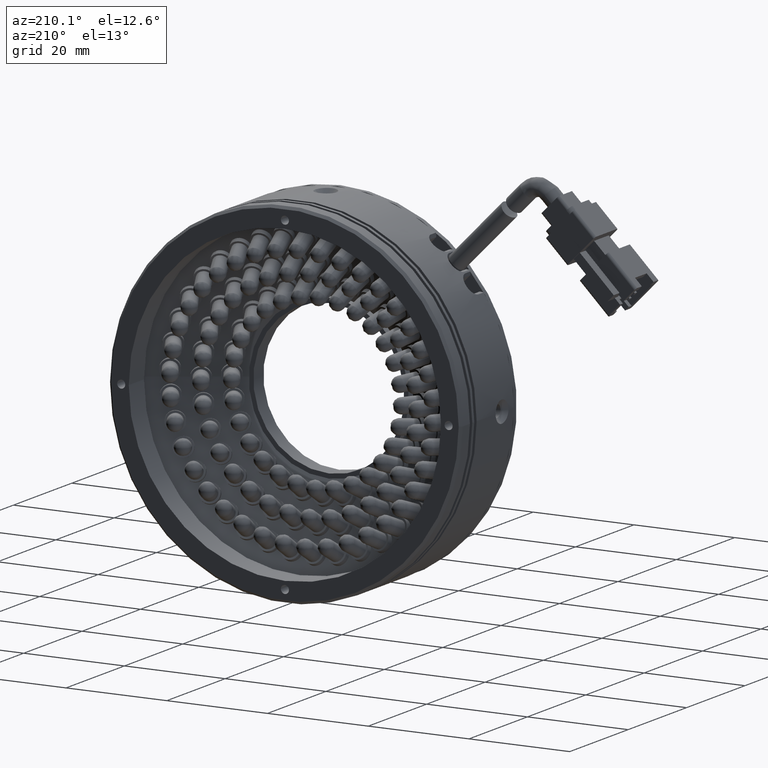
[diagram: clean part render]
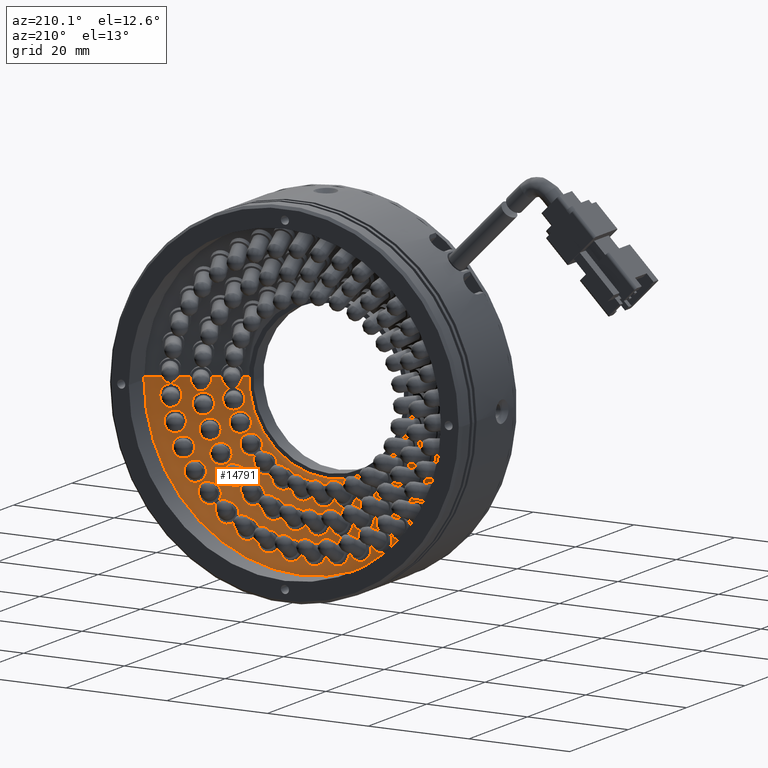
[diagram: same view with one face highlighted and labeled with its STEP entity id]
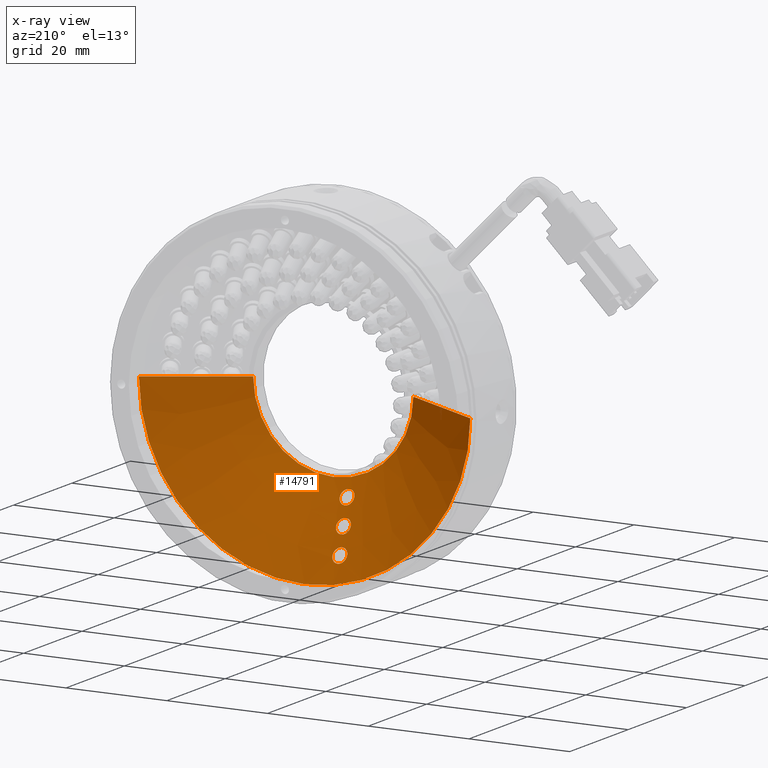
[diagram: x-ray of the same camera — body ghosted, the highlighted face saturated]
A machine part, auxiliary view. The second image highlights one B-rep face of the part: STEP entity #14791.
The next image is the same camera in x-ray: the body ghosted, the highlighted face saturated — about 0% of this face is hidden behind the body in this view.
In plain terms, the highlighted conical surface has half-angle 60 deg.
Its self-contained STEP definition (entity closure, byte-faithful):
#187 = CIRCLE ( 'NONE', #82472, 32.90000000000001300 ) ;
#855 = CARTESIAN_POINT ( 'NONE',  ( -7.739341272370260100, 39.67962014423471100, -24.47491582872099500 ) ) ;
#880 = CARTESIAN_POINT ( 'NONE',  ( -8.952979806178802800, 42.40546240595262600, -29.05316611971529600 ) ) ;
#979 = CARTESIAN_POINT ( 'NONE',  ( -7.790710251023201100, 35.69951058858720900, -17.42506773560813500 ) ) ;
#1148 = CARTESIAN_POINT ( 'NONE',  ( -6.707226876212286200, 38.65147343083933900, -22.83431947787757800 ) ) ;
#1178 = CARTESIAN_POINT ( 'NONE',  ( -7.506053600818340500, 41.36685048861907200, -27.47102932798317500 ) ) ;
#1279 = CARTESIAN_POINT ( 'NONE',  ( -8.650594942333347200, 36.81209799234509500, -19.19343151848955700 ) ) ;
#1514 = CARTESIAN_POINT ( 'NONE',  ( -9.616401842844490800, 39.04539446872104200, -22.93922199707782600 ) ) ;
#1817 = CARTESIAN_POINT ( 'NONE',  ( -8.126017153400308500, 39.73340617173973000, -24.49941220922536900 ) ) ;
#2421 = EDGE_CURVE ( 'NONE', #74066, #20190, #75999, .T. ) ;
#3980 = CARTESIAN_POINT ( 'NONE',  ( -6.647637831684664700, 36.96643683105271100, -19.89251276694124500 ) ) ;
#4283 = CARTESIAN_POINT ( 'NONE',  ( -6.013232809419451800, 35.88453945055366700, -18.09232449086070800 ) ) ;
#5323 = CARTESIAN_POINT ( 'NONE',  ( -9.614345477689243000, 41.06308327912607600, -26.54028890203502300 ) ) ;
#5634 = CARTESIAN_POINT ( 'NONE',  ( -10.24771977635316000, 42.15519138549281300, -28.33465124596552800 ) ) ;
#5635 = AXIS2_PLACEMENT_3D ( 'NONE', #45534, #32365, #25373 ) ;
#7442 = ORIENTED_EDGE ( 'NONE', *, *, #2421, .T. ) ;
#7801 = CARTESIAN_POINT ( 'NONE',  ( -3.499229287090496900, 44.33345823924977900, 0.0000000000000000000 ) ) ;
#7920 = CARTESIAN_POINT ( 'NONE',  ( -7.463401835400208700, 39.60817334590180400, -24.39573136900278500 ) ) ;
#7951 = CARTESIAN_POINT ( 'NONE',  ( -8.471406587644542800, 42.33036807508028000, -29.00761319249429700 ) ) ;
#8048 = CARTESIAN_POINT ( 'NONE',  ( -8.056575963960600700, 35.78741357684759100, -17.51473934416596700 ) ) ;
#8224 = CARTESIAN_POINT ( 'NONE',  ( -6.829042794482528900, 38.52533465631343300, -22.59609862422416500 ) ) ;
#8251 = CARTESIAN_POINT ( 'NONE',  ( -7.609221871326532500, 41.23701779164486000, -27.22840676551577100 ) ) ;
#8357 = CARTESIAN_POINT ( 'NONE',  ( -8.496494288496210200, 36.91697839393531700, -19.42180499483970400 ) ) ;
#8582 = CARTESIAN_POINT ( 'NONE',  ( -9.607191119719640700, 39.23581511972766800, -23.28281086070818900 ) ) ;
#8643 = ORIENTED_EDGE ( 'NONE', *, *, #87427, .T. ) ;
#10997 = CARTESIAN_POINT ( 'NONE',  ( -6.399150232738244300, 36.87332946304622500, -19.76723241423809800 ) ) ;
#11273 = CARTESIAN_POINT ( 'NONE',  ( -6.183427031668156100, 35.77688877810294300, -17.87939412666528200 ) ) ;
#12056 = FACE_BOUND ( 'NONE', #28759, .T. ) ;
#12304 = CARTESIAN_POINT ( 'NONE',  ( -9.861989164077567000, 41.16375678596976700, -26.66127428468372400 ) ) ;
#12619 = CARTESIAN_POINT ( 'NONE',  ( -10.07841646029127400, 42.25506040690066100, -28.55201313611082600 ) ) ;
#12681 = VERTEX_POINT ( 'NONE', #60663 ) ;
#13908 = AXIS2_PLACEMENT_3D ( 'NONE', #24022, #72842, #30991 ) ;
#14273 = FACE_BOUND ( 'NONE', #18311, .T. ) ;
#14791 = ADVANCED_FACE ( 'NONE', ( #14273, #30625, #12056, #49177 ), #81960, .F. ) ;
#14796 = DIRECTION ( 'NONE',  ( 0.0000000000000000000, 0.0000000000000000000, -1.000000000000000000 ) ) ;
#14935 = CARTESIAN_POINT ( 'NONE',  ( -7.214971785731115100, 39.51455658855817200, -24.27074307485122900 ) ) ;
#14963 = CARTESIAN_POINT ( 'NONE',  ( -8.204532125449727400, 42.25113862160805000, -28.91304017168920000 ) ) ;
#15066 = CARTESIAN_POINT ( 'NONE',  ( -8.295003591845938800, 35.89821382996912300, -17.64985393177651900 ) ) ;
#15129 = EDGE_CURVE ( 'NONE', #17104, #53279, #71944, .T. ) ;
#15222 = CARTESIAN_POINT ( 'NONE',  ( -6.999152665954783400, 38.41830274955536600, -22.38280453185543100 ) ) ;
#15256 = CARTESIAN_POINT ( 'NONE',  ( -7.764333339663633800, 41.12322337388067700, -27.00505168492092200 ) ) ;
#15284 = CARTESIAN_POINT ( 'NONE',  ( -8.512012952974407300, 38.31507978090635200, -21.90991986616349900 ) ) ;
#15357 = CARTESIAN_POINT ( 'NONE',  ( -8.226790161327347300, 37.02795848438182000, -19.68752652151526300 ) ) ;
#15597 = CARTESIAN_POINT ( 'NONE',  ( -9.541335136803008200, 39.36800356998072900, -23.53647611234611500 ) ) ;
#15654 = EDGE_CURVE ( 'NONE', #18611, #36733, #43786, .T. ) ;
#17050 = AXIS2_PLACEMENT_3D ( 'NONE', #38299, #87132, #45343 ) ;
#17104 = VERTEX_POINT ( 'NONE', #67724 ) ;
#17322 = EDGE_CURVE ( 'NONE', #87098, #74066, #84632, .T. ) ;
#17734 = CARTESIAN_POINT ( 'NONE',  ( -7.211639020026771300, 37.08328997647380000, -20.00095944428884900 ) ) ;
#17749 = ORIENTED_EDGE ( 'NONE', *, *, #87796, .T. ) ;
#18028 = CARTESIAN_POINT ( 'NONE',  ( -6.115102544428888900, 36.72155686723186100, -19.54186648512347800 ) ) ;
#18311 = EDGE_LOOP ( 'NONE', ( #29948, #61556 ) ) ;
#18322 = CARTESIAN_POINT ( 'NONE',  ( -6.557330366793737000, 35.64401429467526600, -17.58656346070924300 ) ) ;
#18611 = VERTEX_POINT ( 'NONE', #49106 ) ;
#19319 = CARTESIAN_POINT ( 'NONE',  ( -10.14492845220302200, 41.32551632175969300, -26.88098421239943300 ) ) ;
#19633 = CARTESIAN_POINT ( 'NONE',  ( -9.705804544648829700, 42.37663583179723000, -28.85127137951923600 ) ) ;
#20190 = VERTEX_POINT ( 'NONE', #66612 ) ;
#20477 = CARTESIAN_POINT ( 'NONE',  ( 29.40077071290951600, 44.33345823924977900, 4.029087969194793600E-015 ) ) ;
#21532 = CARTESIAN_POINT ( 'NONE',  ( 29.40077071290951600, 44.33345823924977900, 4.029087969194793600E-015 ) ) ;
#21741 = CARTESIAN_POINT ( 'NONE',  ( -7.310290041525680800, 35.61432121487328600, -17.38519587268690400 ) ) ;
#21907 = CARTESIAN_POINT ( 'NONE',  ( -6.931010848148186000, 39.36199844433254200, -24.04581909603001900 ) ) ;
#21934 = CARTESIAN_POINT ( 'NONE',  ( -7.965044978756109700, 42.14946159290583700, -28.77276077624242800 ) ) ;
#22039 = CARTESIAN_POINT ( 'NONE',  ( -8.611896817308270600, 36.11775762312419900, -17.95633560134464800 ) ) ;
#22043 = VECTOR ( 'NONE', #28552, 999.9999999999998900 ) ;
#22224 = CARTESIAN_POINT ( 'NONE',  ( -7.372949805764553900, 38.28617816751025800, -22.08953548399794500 ) ) ;
#22252 = CARTESIAN_POINT ( 'NONE',  ( -8.035341907883346100, 41.00062967706530500, -26.74589687646937700 ) ) ;
#22274 = CARTESIAN_POINT ( 'NONE',  ( -8.787145643246312000, 38.39363400891368600, -21.98507718232612300 ) ) ;
#22361 = CARTESIAN_POINT ( 'NONE',  ( -7.701477358955984600, 37.10535654532809200, -19.94355739374115500 ) ) ;
#22578 = CARTESIAN_POINT ( 'NONE',  ( -9.420373757316095700, 39.48659632667604300, -23.77897028652751700 ) ) ;
#22811 = EDGE_LOOP ( 'NONE', ( #51091, #7442, #8643, #44489, #45686, #28774 ) ) ;
#24022 = CARTESIAN_POINT ( 'NONE',  ( -3.499229287090496900, 44.33345823924977900, 0.0000000000000000000 ) ) ;
#24201 = VERTEX_POINT ( 'NONE', #62174 ) ;
#24806 = DIRECTION ( 'NONE',  ( 0.0000000000000000000, -1.000000000000000000, 0.0000000000000000000 ) ) ;
#25042 = CARTESIAN_POINT ( 'NONE',  ( -5.854298485863917100, 36.44466486082915000, -19.09157884545519900 ) ) ;
#25325 = CARTESIAN_POINT ( 'NONE',  ( -7.113232803650034500, 35.59585197292000200, -17.39564411082976700 ) ) ;
#25373 = DIRECTION ( 'NONE',  ( -1.000000000000000000, 0.0000000000000000000, 0.0000000000000000000 ) ) ;
#26340 = CARTESIAN_POINT ( 'NONE',  ( -10.40473452050690100, 41.61136502178461400, -27.32618704945820200 ) ) ;
#26517 = ORIENTED_EDGE ( 'NONE', *, *, #50008, .T. ) ;
#26650 = CARTESIAN_POINT ( 'NONE',  ( -9.150320248384384000, 42.42136921030059000, -29.04415472813653700 ) ) ;
#27408 = B_SPLINE_CURVE_WITH_KNOTS ( 'NONE', 3,
 ( #66584, #17734, #38738, #87559, #45778, #3980, #52814, #10997, #59885, #18028, #66889, #25042, #73853, #32008, #80890, #39052, #87850, #46059, #4283, #53114, #11273, #60166, #18322, #67181, #25325, #74151 ),
 .UNSPECIFIED., .F., .F.,
 ( 4, 2, 2, 2, 2, 2, 2, 2, 2, 2, 2, 2, 4 ),
 ( 0.004689153269395652200, 0.004982225177446755100, 0.005275297085497858800, 0.005568368993548961600, 0.005861440901600064500, 0.006447584717702279700, 0.007033728533804494900, 0.007326800441855596000, 0.007619872349906698900, 0.007912944257957800800, 0.008206016166008902800, 0.008792159982111105000, 0.009378303798213307200 ),
 .UNSPECIFIED. ) ;
#28003 = B_SPLINE_CURVE_WITH_KNOTS ( 'NONE', 3,
 ( #74881, #81906, #40049, #88889, #47090, #5323, #54141, #12304, #61194, #19319, #68199, #26340, #75183, #33348, #82201, #40361, #89199, #47391, #5634, #54442, #12619, #61493, #19633, #68502, #26650, #75478 ),
 .UNSPECIFIED., .F., .F.,
 ( 4, 2, 2, 2, 2, 2, 2, 2, 2, 2, 2, 2, 4 ),
 ( 0.0000000000000000000, 0.0002930574540876778300, 0.0005861149081753556600, 0.0008791723622630333800, 0.001172229816350711300, 0.001758344724526070400, 0.002344459632701429600, 0.002637517086789113500, 0.002930574540876797800, 0.003223631994964481700, 0.003516689449052165600, 0.004102804357227524300, 0.004688919265402883400 ),
 .UNSPECIFIED. ) ;
#28529 = CARTESIAN_POINT ( 'NONE',  ( -8.126017153400308500, 39.73340617173973000, -24.49941220922536900 ) ) ;
#28552 = DIRECTION ( 'NONE',  ( 0.8660254037844380400, 0.5000000000000012200, 1.060575238724906200E-016 ) ) ;
#28623 = CARTESIAN_POINT ( 'NONE',  ( -8.126017153400308500, 39.73340617173973000, -24.49941220922536900 ) ) ;
#28759 = EDGE_LOOP ( 'NONE', ( #17749, #41183 ) ) ;
#28774 = ORIENTED_EDGE ( 'NONE', *, *, #83506, .F. ) ;
#28928 = CARTESIAN_POINT ( 'NONE',  ( -6.670307195711726100, 39.08424491926190600, -23.59602734317266800 ) ) ;
#28955 = CARTESIAN_POINT ( 'NONE',  ( -7.646654690655180000, 41.94293296368107300, -28.45891335374651400 ) ) ;
#29057 = CARTESIAN_POINT ( 'NONE',  ( -8.799773251315674100, 36.41143492531891500, -18.43168847915595500 ) ) ;
#29227 = CARTESIAN_POINT ( 'NONE',  ( -7.928882857928427600, 38.23753208594516900, -21.89887809932152200 ) ) ;
#29256 = CARTESIAN_POINT ( 'NONE',  ( -8.561871147938912700, 40.91242967505317600, -26.49595380221827100 ) ) ;
#29276 = CARTESIAN_POINT ( 'NONE',  ( -9.034668528020464600, 38.49526318966495400, -22.10552491401226800 ) ) ;
#29355 = CARTESIAN_POINT ( 'NONE',  ( -7.310302041327206600, 37.09136403950636000, -19.99639186465795100 ) ) ;
#29579 = CARTESIAN_POINT ( 'NONE',  ( -9.251174328893736000, 39.58557349665799300, -23.99682824234886200 ) ) ;
#29948 = ORIENTED_EDGE ( 'NONE', *, *, #54884, .T. ) ;
#30625 = FACE_BOUND ( 'NONE', #76482, .T. ) ;
#30991 = DIRECTION ( 'NONE',  ( 0.0000000000000000000, 0.0000000000000000000, -1.000000000000000000 ) ) ;
#32008 = CARTESIAN_POINT ( 'NONE',  ( -5.814987342146343600, 36.19855876566911200, -18.66684883409576700 ) ) ;
#32365 = DIRECTION ( 'NONE',  ( 2.636357866226149200E-017, 1.000000000000000000, 0.0000000000000000000 ) ) ;
#33348 = CARTESIAN_POINT ( 'NONE',  ( -10.44430387557866000, 41.85539707224332100, -27.75205785832393300 ) ) ;
#35695 = CARTESIAN_POINT ( 'NONE',  ( -8.126009834923969800, 38.25536549735331000, -21.88878091193274100 ) ) ;
#35935 = CARTESIAN_POINT ( 'NONE',  ( -6.630971927124229600, 38.83821190458821300, -23.17127738623090800 ) ) ;
#35960 = CARTESIAN_POINT ( 'NONE',  ( -7.458203511137344100, 41.65423866734553800, -27.98077773603358800 ) ) ;
#35989 = CARTESIAN_POINT ( 'NONE',  ( -8.224573364750602500, 38.26428220679626700, -21.88373231612141700 ) ) ;
#36060 = CARTESIAN_POINT ( 'NONE',  ( -8.790647955426298000, 36.60104901771633500, -18.77574319153972800 ) ) ;
#36265 = CARTESIAN_POINT ( 'NONE',  ( -8.952974904975276300, 40.92677479993722800, -26.44290119707320100 ) ) ;
#36282 = CARTESIAN_POINT ( 'NONE',  ( -9.317464193012229500, 38.65814931289669000, -22.32459778235125100 ) ) ;
#36589 = CARTESIAN_POINT ( 'NONE',  ( -8.878725112800903900, 39.70573038120297600, -24.29688026088736300 ) ) ;
#36733 = VERTEX_POINT ( 'NONE', #20477 ) ;
#38299 = CARTESIAN_POINT ( 'NONE',  ( -3.499229287090496900, 34.51850366302609500, 0.0000000000000000000 ) ) ;
#38738 = CARTESIAN_POINT ( 'NONE',  ( -7.114594245637907700, 37.07085854233844200, -19.99682047666746200 ) ) ;
#39052 = CARTESIAN_POINT ( 'NONE',  ( -5.863028698288033500, 36.05616924600039400, -18.41222383921838100 ) ) ;
#40049 = CARTESIAN_POINT ( 'NONE',  ( -9.148472975793387400, 40.94905908247741200, -26.44145130640389100 ) ) ;
#40361 = CARTESIAN_POINT ( 'NONE',  ( -10.39682983194053100, 41.99298110657280600, -28.00939857565776900 ) ) ;
#40565 = VERTEX_POINT ( 'NONE', #63207 ) ;
#40578 = EDGE_CURVE ( 'NONE', #40565, #59416, #84896, .T. ) ;
#41172 = LINE ( 'NONE', #53858, #88099 ) ;
#41183 = ORIENTED_EDGE ( 'NONE', *, *, #15129, .T. ) ;
#42676 = CARTESIAN_POINT ( 'NONE',  ( -7.930306645193956800, 39.71298856615720000, -24.49979927782977300 ) ) ;
#42812 = CARTESIAN_POINT ( 'NONE',  ( -7.696111051554895600, 35.67556865600905500, -17.40548577319333700 ) ) ;
#42983 = CARTESIAN_POINT ( 'NONE',  ( -6.678952271236222600, 38.69619366119012900, -22.91644508116251100 ) ) ;
#43009 = CARTESIAN_POINT ( 'NONE',  ( -7.467846295497078100, 41.45990364860053000, -27.63941037861222200 ) ) ;
#43117 = CARTESIAN_POINT ( 'NONE',  ( -8.724902758857581400, 36.73225378557625500, -19.02995811931226200 ) ) ;
#43351 = CARTESIAN_POINT ( 'NONE',  ( -9.577168760598130600, 38.94480603053467900, -22.76935304859107800 ) ) ;
#43650 = CARTESIAN_POINT ( 'NONE',  ( -8.323351579588042200, 39.74940849208941500, -24.49035177633747300 ) ) ;
#43786 = CIRCLE ( 'NONE', #13908, 32.90000000000001300 ) ;
#44489 = ORIENTED_EDGE ( 'NONE', *, *, #15654, .F. ) ;
#45343 = DIRECTION ( 'NONE',  ( 0.0000000000000000000, 0.0000000000000000000, -1.000000000000000000 ) ) ;
#45534 = CARTESIAN_POINT ( 'NONE',  ( -3.499229287090496900, 44.33345823924977900, 0.0000000000000000000 ) ) ;
#45686 = ORIENTED_EDGE ( 'NONE', *, *, #76356, .F. ) ;
#45778 = CARTESIAN_POINT ( 'NONE',  ( -6.828694194691125000, 37.01639190862390200, -19.95073675693838300 ) ) ;
#46059 = CARTESIAN_POINT ( 'NONE',  ( -5.966337066305794000, 35.92539275226341300, -18.17014078892612600 ) ) ;
#47090 = CARTESIAN_POINT ( 'NONE',  ( -9.433791460266444800, 41.00864045244903600, -26.48461712446967600 ) ) ;
#47391 = CARTESIAN_POINT ( 'NONE',  ( -10.29431679352946500, 42.11694194374440100, -28.25534752693431500 ) ) ;
#49106 = CARTESIAN_POINT ( 'NONE',  ( -3.499229287090496900, 44.33345823924977900, -32.90000000000001300 ) ) ;
#49177 = FACE_OUTER_BOUND ( 'NONE', #22811, .T. ) ;
#49690 = CARTESIAN_POINT ( 'NONE',  ( -7.644430114972484700, 39.65837043640359400, -24.45381316674345100 ) ) ;
#49724 = CARTESIAN_POINT ( 'NONE',  ( -8.566310128971036200, 42.35167900933220900, -29.02867869727654700 ) ) ;
#49831 = CARTESIAN_POINT ( 'NONE',  ( -7.971060916637100000, 35.75554223345177000, -17.47985001603979800 ) ) ;
#50006 = CARTESIAN_POINT ( 'NONE',  ( -6.782176119660943100, 38.56597510495269900, -22.67404312924625000 ) ) ;
#50008 = EDGE_CURVE ( 'NONE', #59416, #40565, #87140, .T. ) ;
#50028 = CARTESIAN_POINT ( 'NONE',  ( -7.534310879308643300, 41.32224913513599800, -27.38883581286950900 ) ) ;
#50140 = CARTESIAN_POINT ( 'NONE',  ( -8.604085098272355100, 36.84961811329559100, -19.27313423160762800 ) ) ;
#50360 = CARTESIAN_POINT ( 'NONE',  ( -9.616774726965559200, 39.18845754327679700, -23.19545030713630100 ) ) ;
#51091 = ORIENTED_EDGE ( 'NONE', *, *, #17322, .T. ) ;
#52238 = ORIENTED_EDGE ( 'NONE', *, *, #40578, .T. ) ;
#52814 = CARTESIAN_POINT ( 'NONE',  ( -6.561742631334450200, 36.93784400236128100, -19.85576617606574200 ) ) ;
#53114 = CARTESIAN_POINT ( 'NONE',  ( -6.121590895234669800, 35.81053907130727500, -17.94741377219531800 ) ) ;
#53279 = VERTEX_POINT ( 'NONE', #80282 ) ;
#53858 = CARTESIAN_POINT ( 'NONE',  ( -36.39922928709050600, 44.33345823924977900, 0.0000000000000000000 ) ) ;
#54141 = CARTESIAN_POINT ( 'NONE',  ( -9.699964876681329800, 41.09414735941405900, -26.57563184810865300 ) ) ;
#54442 = CARTESIAN_POINT ( 'NONE',  ( -10.13995489062094400, 42.22401240451118600, -28.48251311079387100 ) ) ;
#54884 = EDGE_CURVE ( 'NONE', #24201, #70088, #83528, .T. ) ;
#56576 = DIRECTION ( 'NONE',  ( 0.0000000000000000000, -1.000000000000000000, 0.0000000000000000000 ) ) ;
#56702 = CARTESIAN_POINT ( 'NONE',  ( -7.377524262307210800, 39.57942438519752000, -24.35907486611181800 ) ) ;
#56731 = CARTESIAN_POINT ( 'NONE',  ( -8.290397616310784200, 42.27999804800718000, -28.94963286773964800 ) ) ;
#56829 = CARTESIAN_POINT ( 'NONE',  ( -8.218397772938898200, 35.85858987407202400, -17.59949949590982900 ) ) ;
#57010 = CARTESIAN_POINT ( 'NONE',  ( -6.937344354033162300, 38.45174914575962100, -22.45094296160846500 ) ) ;
#57039 = CARTESIAN_POINT ( 'NONE',  ( -7.656069239680867600, 41.19652396437412300, -27.15037472642284700 ) ) ;
#57068 = CARTESIAN_POINT ( 'NONE',  ( -8.321456830152213200, 38.27810723177035600, -21.88707786487809800 ) ) ;
#57141 = CARTESIAN_POINT ( 'NONE',  ( -8.435043580221108800, 36.94728665405953200, -19.49171797322839700 ) ) ;
#57377 = CARTESIAN_POINT ( 'NONE',  ( -9.569363108913465900, 39.32545859195840200, -23.45311944664643300 ) ) ;
#59234 = LINE ( 'NONE', #21532, #22043 ) ;
#59416 = VERTEX_POINT ( 'NONE', #28529 ) ;
#59885 = CARTESIAN_POINT ( 'NONE',  ( -6.322152157281901300, 36.83710642226037600, -19.71495182926438300 ) ) ;
#60166 = CARTESIAN_POINT ( 'NONE',  ( -6.392775132384871400, 35.68670496959610000, -17.68897500399129900 ) ) ;
#60663 = CARTESIAN_POINT ( 'NONE',  ( -36.39922928709050600, 44.33345823924977900, 0.0000000000000000000 ) ) ;
#60934 = DIRECTION ( 'NONE',  ( -0.8660254037844380400, 0.5000000000000012200, 0.0000000000000000000 ) ) ;
#61194 = CARTESIAN_POINT ( 'NONE',  ( -9.938694805172795900, 41.20261874719117400, -26.71205992397248300 ) ) ;
#61493 = CARTESIAN_POINT ( 'NONE',  ( -9.869914292430054900, 42.33790553386816000, -28.74660032753976000 ) ) ;
#61556 = ORIENTED_EDGE ( 'NONE', *, *, #70323, .T. ) ;
#62040 = AXIS2_PLACEMENT_3D ( 'NONE', #66637, #24806, #73591 ) ;
#62174 = CARTESIAN_POINT ( 'NONE',  ( -7.310290041525680800, 35.61432121487328600, -17.38519587268690400 ) ) ;
#63207 = CARTESIAN_POINT ( 'NONE',  ( -8.126009834923969800, 38.25536549735331000, -21.88878091193274100 ) ) ;
#63460 = CARTESIAN_POINT ( 'NONE',  ( -8.027349981678771200, 39.72540501491988600, -24.50394242376975400 ) ) ;
#63546 = CARTESIAN_POINT ( 'NONE',  ( -7.310302041327206600, 37.09136403950636000, -19.99639186465795100 ) ) ;
#63584 = CARTESIAN_POINT ( 'NONE',  ( -7.408818718048637600, 35.62355584124712500, -17.37997175056222700 ) ) ;
#63759 = CARTESIAN_POINT ( 'NONE',  ( -7.137995253598421500, 39.47813452338615300, -24.21857459429738000 ) ) ;
#63790 = CARTESIAN_POINT ( 'NONE',  ( -8.042006832221570500, 42.18602263555828100, -28.82485061332171100 ) ) ;
#63890 = CARTESIAN_POINT ( 'NONE',  ( -8.500975608089644800, 36.02312674638007200, -17.81763810754610200 ) ) ;
#64071 = CARTESIAN_POINT ( 'NONE',  ( -7.208422588593758300, 38.32865089650834300, -22.19207936680570400 ) ) ;
#64100 = CARTESIAN_POINT ( 'NONE',  ( -7.826123255223270000, 41.08991663320537700, -26.93683209078371400 ) ) ;
#64124 = CARTESIAN_POINT ( 'NONE',  ( -8.606671292480484700, 38.33855470594129900, -21.92976182667592500 ) ) ;
#64210 = CARTESIAN_POINT ( 'NONE',  ( -8.062838625852881700, 37.06537512573197500, -19.79292636735571900 ) ) ;
#64425 = CARTESIAN_POINT ( 'NONE',  ( -9.466936343154808100, 39.44864151642838800, -23.69950480372113000 ) ) ;
#66584 = CARTESIAN_POINT ( 'NONE',  ( -7.310302041327206600, 37.09136403950636000, -19.99639186465795100 ) ) ;
#66612 = CARTESIAN_POINT ( 'NONE',  ( 12.40077071290950400, 34.51850366302609500, 2.988138189919542900E-015 ) ) ;
#66637 = CARTESIAN_POINT ( 'NONE',  ( -3.499229287090496900, 34.51850366302609500, 0.0000000000000000000 ) ) ;
#66889 = CARTESIAN_POINT ( 'NONE',  ( -6.003575855041201100, 36.63222429894067000, -19.40017429447057400 ) ) ;
#67181 = CARTESIAN_POINT ( 'NONE',  ( -6.919344179591868200, 35.59834035582802200, -17.43915552049669400 ) ) ;
#67724 = CARTESIAN_POINT ( 'NONE',  ( -8.952979806178802800, 42.40546240595262600, -29.05316611971529600 ) ) ;
#68199 = CARTESIAN_POINT ( 'NONE',  ( -10.25597654987680600, 41.41912522149640100, -27.02025420145093500 ) ) ;
#68502 = CARTESIAN_POINT ( 'NONE',  ( -9.344220064194598100, 42.41858190914378200, -29.00080795146602600 ) ) ;
#70088 = VERTEX_POINT ( 'NONE', #63546 ) ;
#70323 = EDGE_CURVE ( 'NONE', #70088, #24201, #27408, .T. ) ;
#70496 = CARTESIAN_POINT ( 'NONE',  ( -8.757267160830045000, 42.38510001851833700, -29.05352719554403200 ) ) ;
#70788 = CARTESIAN_POINT ( 'NONE',  ( -6.819530510447847900, 39.27227888657979800, -23.90434608353060500 ) ) ;
#70809 = CARTESIAN_POINT ( 'NONE',  ( -7.758104526998889300, 42.03291816507753300, -28.60023543247531200 ) ) ;
#70905 = CARTESIAN_POINT ( 'NONE',  ( -8.760535259375803500, 36.31091383328943300, -18.26177079302916800 ) ) ;
#71069 = CARTESIAN_POINT ( 'NONE',  ( -7.734968479968427100, 38.24037400330316700, -21.94219195022146700 ) ) ;
#71097 = CARTESIAN_POINT ( 'NONE',  ( -8.199850098776233100, 40.95830811804464100, -26.64326177210045900 ) ) ;
#71123 = CARTESIAN_POINT ( 'NONE',  ( -8.872724065317966000, 38.42502235059930600, -22.02023793306635800 ) ) ;
#71202 = CARTESIAN_POINT ( 'NONE',  ( -7.507628199253294300, 37.10751217500910600, -19.98725670005722300 ) ) ;
#71431 = CARTESIAN_POINT ( 'NONE',  ( -9.312677869762641300, 39.55482576363152700, -23.92716042355668200 ) ) ;
#71944 = B_SPLINE_CURVE_WITH_KNOTS ( 'NONE', 3,
 ( #880, #84455, #70496, #49724, #7951, #56731, #14963, #63790, #21934, #70809, #28955, #77810, #35960, #84765, #43009, #1178, #50028, #8251, #57039, #15256, #64100, #22252, #71097, #29256, #78119, #36265 ),
 .UNSPECIFIED., .F., .F.,
 ( 4, 2, 2, 2, 2, 2, 2, 2, 2, 2, 2, 2, 4 ),
 ( 0.004688919265402883400, 0.004981976628206054000, 0.005275033991009224500, 0.005568091353812394200, 0.005861148716615564700, 0.006447263442221905700, 0.007033378167828245900, 0.007326435530631416500, 0.007619492893434587000, 0.007912550256237757500, 0.008205607619040928100, 0.008791722344647265700, 0.009377837070253603300 ),
 .UNSPECIFIED. ) ;
#72842 = DIRECTION ( 'NONE',  ( 0.0000000000000000000, -1.000000000000000000, 0.0000000000000000000 ) ) ;
#72920 = CARTESIAN_POINT ( 'NONE',  ( -19.39922928709049900, 34.51850366302609500, 0.0000000000000000000 ) ) ;
#73591 = DIRECTION ( 'NONE',  ( 0.0000000000000000000, 0.0000000000000000000, -1.000000000000000000 ) ) ;
#73853 = CARTESIAN_POINT ( 'NONE',  ( -5.815024441157150100, 36.34446441558183200, -18.92148008999278400 ) ) ;
#74066 = VERTEX_POINT ( 'NONE', #89950 ) ;
#74151 = CARTESIAN_POINT ( 'NONE',  ( -7.310290041525680800, 35.61432121487328600, -17.38519587268690400 ) ) ;
#74881 = CARTESIAN_POINT ( 'NONE',  ( -8.952974904975276300, 40.92677479993722800, -26.44290119707320100 ) ) ;
#75183 = CARTESIAN_POINT ( 'NONE',  ( -10.44396662072347800, 41.71198201028511900, -27.49603370969044000 ) ) ;
#75478 = CARTESIAN_POINT ( 'NONE',  ( -8.952979806178802800, 42.40546240595262600, -29.05316611971529600 ) ) ;
#75999 = CIRCLE ( 'NONE', #17050, 15.90000000000000000 ) ;
#76356 = EDGE_CURVE ( 'NONE', #12681, #18611, #187, .T. ) ;
#76482 = EDGE_LOOP ( 'NONE', ( #52238, #26517 ) ) ;
#77779 = CARTESIAN_POINT ( 'NONE',  ( -6.631040494420730600, 38.98395864439069000, -23.42598754997115800 ) ) ;
#77810 = CARTESIAN_POINT ( 'NONE',  ( -7.497466143850914500, 41.75457869986729500, -28.15078112887044900 ) ) ;
#77907 = CARTESIAN_POINT ( 'NONE',  ( -8.800203753352455700, 36.55395009986232000, -18.68823513173710500 ) ) ;
#78095 = CARTESIAN_POINT ( 'NONE',  ( -8.126009834923969800, 38.25536549735331000, -21.88878091193274100 ) ) ;
#78119 = CARTESIAN_POINT ( 'NONE',  ( -8.755802858812023400, 40.90935909776318600, -26.45276739700101500 ) ) ;
#78142 = CARTESIAN_POINT ( 'NONE',  ( -9.111334669970787600, 38.53443332070613500, -22.15613626978010900 ) ) ;
#78449 = CARTESIAN_POINT ( 'NONE',  ( -9.042771631967268000, 39.66753528777491800, -24.19191191683506800 ) ) ;
#80282 = CARTESIAN_POINT ( 'NONE',  ( -8.952974904975276300, 40.92677479993722800, -26.44290119707320100 ) ) ;
#80890 = CARTESIAN_POINT ( 'NONE',  ( -5.824749000071188100, 36.14968324293430900, -18.58034348883848700 ) ) ;
#81906 = CARTESIAN_POINT ( 'NONE',  ( -9.051560958765488600, 40.93548265373667800, -26.43796809557269600 ) ) ;
#81960 = CONICAL_SURFACE ( 'NONE', #5635, 32.90000000000001300, 1.047197551196596300 ) ;
#82201 = CARTESIAN_POINT ( 'NONE',  ( -10.43470257960576400, 41.90292437040938700, -27.83932158026065900 ) ) ;
#82472 = AXIS2_PLACEMENT_3D ( 'NONE', #7801, #56576, #14796 ) ;
#83506 = EDGE_CURVE ( 'NONE', #87098, #12681, #41172, .T. ) ;
#83528 = B_SPLINE_CURVE_WITH_KNOTS ( 'NONE', 3,
 ( #21741, #63584, #84572, #42812, #979, #49831, #8048, #56829, #15066, #63890, #22039, #70905, #29057, #77907, #36060, #84880, #43117, #1279, #50140, #8357, #57141, #15357, #64210, #22361, #71202, #29355 ),
 .UNSPECIFIED., .F., .F.,
 ( 4, 2, 2, 2, 2, 2, 2, 2, 2, 2, 2, 2, 4 ),
 ( 0.0000000000000000000, 0.0002930720793372350900, 0.0005861441586744701900, 0.0008792162380117053400, 0.001172288317348940400, 0.001758432476023392000, 0.002344576634697843900, 0.002637648714035069600, 0.002930720793372295300, 0.003223792872709520600, 0.003516864952046746300, 0.004103009110721199000, 0.004689153269395652200 ),
 .UNSPECIFIED. ) ;
#84455 = CARTESIAN_POINT ( 'NONE',  ( -8.854309615810803900, 42.39750900625606500, -29.05767181410120200 ) ) ;
#84572 = CARTESIAN_POINT ( 'NONE',  ( -7.505657750291806700, 35.63775775347586000, -17.38310900334798200 ) ) ;
#84632 = CIRCLE ( 'NONE', #62040, 15.90000000000000000 ) ;
#84742 = CARTESIAN_POINT ( 'NONE',  ( -6.640716148425702200, 38.78943655632409800, -23.08471835263673100 ) ) ;
#84765 = CARTESIAN_POINT ( 'NONE',  ( -7.458113657557699800, 41.50860801471335300, -27.72600798584455700 ) ) ;
#84880 = CARTESIAN_POINT ( 'NONE',  ( -8.752889480073086800, 36.69007040392676100, -18.94639932793944200 ) ) ;
#84896 = B_SPLINE_CURVE_WITH_KNOTS ( 'NONE', 3,
 ( #35695, #35989, #57068, #15284, #64124, #22274, #71123, #29276, #78142, #36282, #85093, #43351, #1514, #50360, #8582, #57377, #15597, #64425, #22578, #71431, #29579, #78449, #36589, #85405, #43650, #1817 ),
 .UNSPECIFIED., .F., .F.,
 ( 4, 2, 2, 2, 2, 2, 2, 2, 2, 2, 2, 2, 4 ),
 ( 0.0000000000000000000, 0.0002930627051995748100, 0.0005861254103991496200, 0.0008791881155987245300, 0.001172250820798299200, 0.001758376231197448000, 0.002344501641596597200, 0.002637564346796166700, 0.002930627051995736200, 0.003223689757195305700, 0.003516752462394875200, 0.004102877872794015400, 0.004689003283193154400 ),
 .UNSPECIFIED. ) ;
#85093 = CARTESIAN_POINT ( 'NONE',  ( -9.428460770492000300, 38.75217838453870200, -22.46363211611737400 ) ) ;
#85405 = CARTESIAN_POINT ( 'NONE',  ( -8.517230292825551900, 39.74687720419419200, -24.44686223170448600 ) ) ;
#87098 = VERTEX_POINT ( 'NONE', #72920 ) ;
#87132 = DIRECTION ( 'NONE',  ( 0.0000000000000000000, -1.000000000000000000, 0.0000000000000000000 ) ) ;
#87140 = B_SPLINE_CURVE_WITH_KNOTS ( 'NONE', 3,
 ( #28623, #63460, #42676, #855, #49690, #7920, #56702, #14935, #63759, #21907, #70788, #28928, #77779, #35935, #84742, #42983, #1148, #50006, #8224, #57010, #15222, #64071, #22224, #71069, #29227, #78095 ),
 .UNSPECIFIED., .F., .F.,
 ( 4, 2, 2, 2, 2, 2, 2, 2, 2, 2, 2, 2, 4 ),
 ( 0.004689003283193154400, 0.004982065865508045400, 0.005275128447822938000, 0.005568191030137831600, 0.005861253612452725100, 0.006447378777082507000, 0.007033503941712289700, 0.007326566524027185900, 0.007619629106342082000, 0.007912691688656978100, 0.008205754270971876000, 0.008791879435601666600, 0.009378004600231457100 ),
 .UNSPECIFIED. ) ;
#87427 = EDGE_CURVE ( 'NONE', #20190, #36733, #59234, .T. ) ;
#87559 = CARTESIAN_POINT ( 'NONE',  ( -6.923616510313380900, 37.03755754756817700, -19.97189083590947700 ) ) ;
#87796 = EDGE_CURVE ( 'NONE', #53279, #17104, #28003, .T. ) ;
#87850 = CARTESIAN_POINT ( 'NONE',  ( -5.891329602586320200, 36.01127777300907700, -18.33019600680029300 ) ) ;
#88099 = VECTOR ( 'NONE', #60934, 999.9999999999998900 ) ;
#88889 = CARTESIAN_POINT ( 'NONE',  ( -9.339095148849427400, 40.98547613981895700, -26.46460204035944800 ) ) ;
#89199 = CARTESIAN_POINT ( 'NONE',  ( -10.36877508722550400, 42.03576847240472600, -28.09261940755415000 ) ) ;
#89950 = CARTESIAN_POINT ( 'NONE',  ( -3.499229287090496900, 34.51850366302609500, -15.90000000000000000 ) ) ;